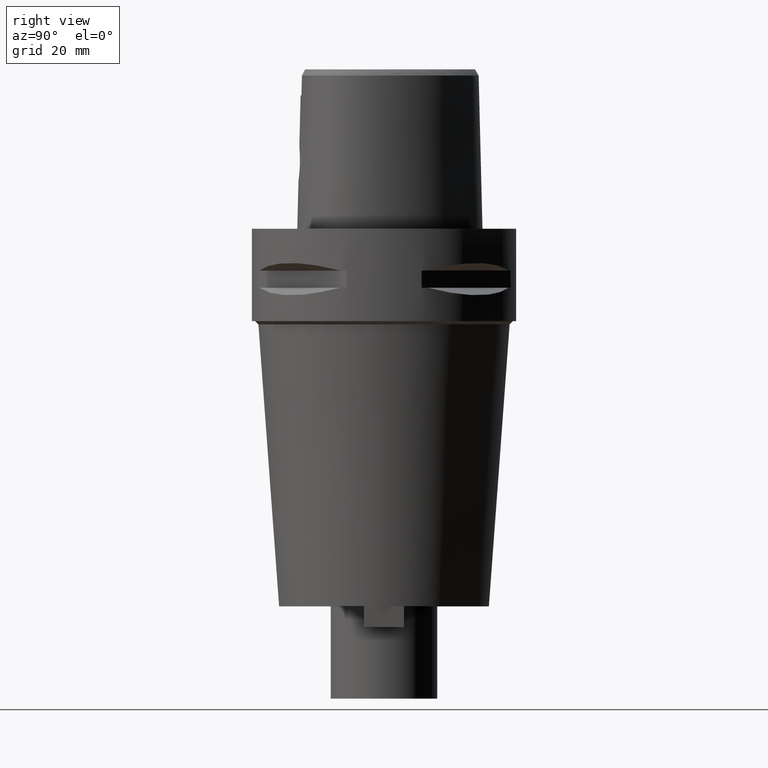
[diagram: clean part render]
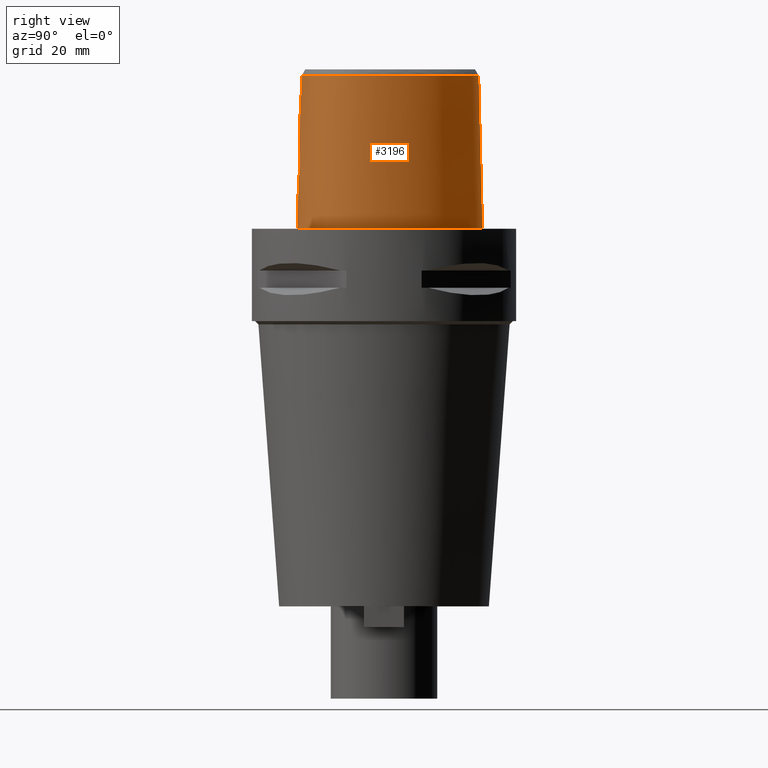
[diagram: same view with one face highlighted and labeled with its STEP entity id]
A machine part, right view. The second image highlights one B-rep face of the part: STEP entity #3196.
In plain terms, the highlighted face is a freeform B-spline surface patch.
Its self-contained STEP definition (entity closure, byte-faithful):
#134=CARTESIAN_POINT('',(3.637738219117E0,-1.956971420299E1,3.652185956444E1));
#144=CARTESIAN_POINT('',(-1.703764269641E-11,2.256201468012E1,
3.652186680744E1));
#145=CARTESIAN_POINT('',(3.980057723656E-1,2.256201468011E1,3.652186680744E1));
#146=CARTESIAN_POINT('',(1.191548421376E0,2.252064513026E1,3.652180197791E1));
#147=CARTESIAN_POINT('',(2.451661906656E0,2.232372524277E1,3.652187503247E1));
#148=CARTESIAN_POINT('',(3.775187116935E0,2.197589849649E1,3.652186396788E1));
#149=CARTESIAN_POINT('',(5.175952963295E0,2.145597390961E1,3.652187139812E1));
#150=CARTESIAN_POINT('',(6.656093951730E0,2.073737704975E1,3.652187209262E1));
#151=CARTESIAN_POINT('',(8.157673794115E0,1.982948040371E1,3.652186479224E1));
#152=CARTESIAN_POINT('',(9.648124662168E0,1.874754657410E1,3.652186778328E1));
#153=CARTESIAN_POINT('',(1.115199650919E1,1.746700551393E1,3.652186908166E1));
#154=CARTESIAN_POINT('',(1.275138858112E1,1.588002163828E1,3.652186696193E1));
#155=CARTESIAN_POINT('',(1.442310923169E1,1.392730878229E1,3.652186007520E1));
#156=CARTESIAN_POINT('',(1.600846281590E1,1.173489767122E1,3.652187219793E1));
#157=CARTESIAN_POINT('',(1.744456707320E1,9.371547943024E0,3.652185756304E1));
#158=CARTESIAN_POINT('',(1.867619725622E1,6.925367517476E0,3.652184617642E1));
#159=CARTESIAN_POINT('',(1.968307742429E1,4.444138892519E0,3.652187233318E1));
#160=CARTESIAN_POINT('',(2.040749768753E1,2.128365815369E0,3.652185913963E1));
#161=CARTESIAN_POINT('',(2.088035359277E1,6.095806362066E-2,3.652187685150E1));
#162=CARTESIAN_POINT('',(2.116230524487E1,-1.823640005701E0,3.652186159509E1));
#163=CARTESIAN_POINT('',(2.128624206953E1,-3.617007623876E0,3.652187065493E1));
#164=CARTESIAN_POINT('',(2.125409430008E1,-5.339715885353E0,3.652186580570E1));
#165=CARTESIAN_POINT('',(2.107383940393E1,-6.915921488467E0,3.652186985195E1));
#166=CARTESIAN_POINT('',(2.077386404720E1,-8.314957441477E0,3.652186872591E1));
#167=CARTESIAN_POINT('',(2.036797324371E1,-9.577456225465E0,3.652186723064E1));
#168=CARTESIAN_POINT('',(1.987193289361E1,-1.070810176480E1,3.652185942833E1));
#169=CARTESIAN_POINT('',(1.928133301964E1,-1.174506839769E1,3.652191249723E1));
#170=CARTESIAN_POINT('',(1.856493536007E1,-1.274304599746E1,3.652185915972E1));
#171=CARTESIAN_POINT('',(1.769367813097E1,-1.372638773052E1,3.652186987952E1));
#172=CARTESIAN_POINT('',(1.665192794144E1,-1.468839136346E1,3.652187224596E1));
#173=CARTESIAN_POINT('',(1.540208429159E1,-1.563463621559E1,3.652186536158E1));
#174=CARTESIAN_POINT('',(1.394812162219E1,-1.653098789028E1,3.652186914472E1));
#175=CARTESIAN_POINT('',(1.235002645250E1,-1.733120612622E1,3.652186613958E1));
#176=CARTESIAN_POINT('',(1.058928942667E1,-1.804127272966E1,3.652187528908E1));
#177=CARTESIAN_POINT('',(8.616659342959E0,-1.866801040537E1,3.652185401907E1));
#178=CARTESIAN_POINT('',(6.272667624447E0,-1.921532058974E1,3.652188138417E1));
#179=CARTESIAN_POINT('',(4.542082602987E0,-1.947335931443E1,3.652183633097E1));
#180=CARTESIAN_POINT('',(3.637738219117E0,-1.956971420299E1,3.652185956444E1));
#253=DIRECTION('',(-1.665636293796E-9,-2.499140646182E-2,-9.996876660253E-1));
#254=VECTOR('',#253,1.225382733632E1);
#255=CARTESIAN_POINT('',(2.041042029991E-8,-1.988004246002E1,3.180000004972E1));
#256=LINE('',#255,#254);
#274=CARTESIAN_POINT('',(-1.023561814322E-12,-2.038876923348E1,1.145E1));
#279=DIRECTION('',(-6.261628370898E-13,-2.499051295390E-2,-9.996876883619E-1));
#280=VECTOR('',#279,1.145357708542E1);
#281=CARTESIAN_POINT('',(-1.023561814322E-12,-2.038876923348E1,1.145E1));
#282=LINE('',#281,#280);
#302=CARTESIAN_POINT('',(-8.195366136956E-12,-2.0675E1,5.699144859742E-14));
#303=CARTESIAN_POINT('',(9.424410730313E-1,-2.0675E1,5.699144859742E-14));
#304=CARTESIAN_POINT('',(2.793498385144E0,-2.060121279113E1,
-2.644982334311E-14));
#305=CARTESIAN_POINT('',(5.508317392498E0,-2.027760784305E1,0.E0));
#306=CARTESIAN_POINT('',(8.042283048290E0,-1.976535038161E1,0.E0));
#307=CARTESIAN_POINT('',(1.034769246011E1,-1.909901168002E1,0.E0));
#308=CARTESIAN_POINT('',(1.239690028726E1,-1.831440633134E1,0.E0));
#309=CARTESIAN_POINT('',(1.418724497299E1,-1.744418331143E1,0.E0));
#310=CARTESIAN_POINT('',(1.573252799017E1,-1.651362362014E1,0.E0));
#311=CARTESIAN_POINT('',(1.705345026612E1,-1.554124778281E1,0.E0));
#312=CARTESIAN_POINT('',(1.817409574332E1,-1.453882758759E1,0.E0));
#313=CARTESIAN_POINT('',(1.911939204581E1,-1.350918186793E1,0.E0));
#314=CARTESIAN_POINT('',(1.990164630943E1,-1.246448486181E1,0.E0));
#315=CARTESIAN_POINT('',(2.055241369892E1,-1.138152228921E1,0.E0));
#316=CARTESIAN_POINT('',(2.109859169268E1,-1.021515076491E1,0.E0));
#317=CARTESIAN_POINT('',(2.155059010529E1,-8.927115672096E0,0.E0));
#318=CARTESIAN_POINT('',(2.189661581262E1,-7.503943940441E0,0.E0));
#319=CARTESIAN_POINT('',(2.212243449064E1,-5.927939707532E0,0.E0));
#320=CARTESIAN_POINT('',(2.220771296201E1,-4.182993250552E0,0.E0));
#321=CARTESIAN_POINT('',(2.212727169809E1,-2.257530056409E0,0.E0));
#322=CARTESIAN_POINT('',(2.185268526932E1,-1.488562286611E-1,0.E0));
#323=CARTESIAN_POINT('',(2.135583121463E1,2.131060266597E0,0.E0));
#324=CARTESIAN_POINT('',(2.061498960730E1,4.548922353838E0,0.E0));
#325=CARTESIAN_POINT('',(1.962183629035E1,7.048070491889E0,0.E0));
#326=CARTESIAN_POINT('',(1.838960266974E1,9.548018977044E0,0.E0));
#327=CARTESIAN_POINT('',(1.695186415591E1,1.196227064422E1,0.E0));
#328=CARTESIAN_POINT('',(1.535543809526E1,1.421580229752E1,0.E0));
#329=CARTESIAN_POINT('',(1.366191099290E1,1.624115744859E1,0.E0));
#330=CARTESIAN_POINT('',(1.193262208639E1,1.799662913011E1,0.E0));
#331=CARTESIAN_POINT('',(1.021592161028E1,1.947049924403E1,0.E0));
#332=CARTESIAN_POINT('',(8.546574879406E0,2.067109792507E1,0.E0));
#333=CARTESIAN_POINT('',(6.944082352105E0,2.162048497503E1,0.E0));
#334=CARTESIAN_POINT('',(5.416515327443E0,2.234578935846E1,0.E0));
#335=CARTESIAN_POINT('',(3.964005430014E0,2.287416795835E1,0.E0));
#336=CARTESIAN_POINT('',(2.581016174533E0,2.322975955653E1,0.E0));
#337=CARTESIAN_POINT('',(1.261697128686E0,2.343214818692E1,
-2.511015696599E-14));
#338=CARTESIAN_POINT('',(4.146040462738E-1,2.347499999999E1,
5.410486873340E-14));
#339=CARTESIAN_POINT('',(4.711982846279E-11,2.347499999999E1,
5.410486873340E-14));
#344=CARTESIAN_POINT('',(4.711982846279E-11,2.347499999999E1,
5.410486873340E-14));
#381=CARTESIAN_POINT('',(-8.195366136956E-12,-2.0675E1,5.699144859742E-14));
#1042=CARTESIAN_POINT('',(-1.023561814322E-12,-2.038876923348E1,1.145E1));
#1043=CARTESIAN_POINT('',(3.518410039386E-1,-2.038876923348E1,1.145E1));
#1044=CARTESIAN_POINT('',(1.056002269219E0,-2.037568214282E1,1.154238708990E1));
#1045=CARTESIAN_POINT('',(2.040385422200E0,-2.032131306427E1,1.194792367503E1));
#1046=CARTESIAN_POINT('',(2.891794145478E0,-2.024379318177E1,1.259807706062E1));
#1047=CARTESIAN_POINT('',(3.545775398699E0,-2.016065841224E1,1.344776599254E1));
#1048=CARTESIAN_POINT('',(3.957111572053E0,-2.009016928170E1,1.443938952574E1));
#1049=CARTESIAN_POINT('',(4.096327614963E0,-2.004685475213E1,1.549997055253E1));
#1050=CARTESIAN_POINT('',(3.957577704512E0,-2.003680793094E1,1.655714913641E1));
#1051=CARTESIAN_POINT('',(3.549577819492E0,-2.005726835327E1,1.754497021867E1));
#1052=CARTESIAN_POINT('',(2.899403737141E0,-2.009772754991E1,1.839411373098E1));
#1053=CARTESIAN_POINT('',(2.049555943288E0,-2.014302748467E1,1.904720420744E1));
#1054=CARTESIAN_POINT('',(1.060000729701E0,-2.017769463663E1,1.945708074101E1));
#1055=CARTESIAN_POINT('',(3.531896813643E-1,-2.018628283969E1,1.955E1));
#1056=CARTESIAN_POINT('',(0.E0,-2.018628283969E1,1.955E1));
#1061=CARTESIAN_POINT('',(3.736696120838E0,-1.967778323292E1,3.180000004973E1));
#1062=CARTESIAN_POINT('',(3.726005752326E0,-1.966575923680E1,3.232454431401E1));
#1063=CARTESIAN_POINT('',(3.704089546608E0,-1.964135163374E1,3.337368958252E1));
#1064=CARTESIAN_POINT('',(3.671106187705E0,-1.960533295284E1,3.494764256979E1));
#1065=CARTESIAN_POINT('',(3.649042743234E0,-1.958170238761E1,3.599710209057E1));
#1066=CARTESIAN_POINT('',(3.637738219117E0,-1.956971420299E1,3.652185956444E1));
#1071=DIRECTION('',(1.756137887817E-12,2.499051290963E-2,-9.996876883630E-1));
#1072=VECTOR('',#1071,3.653327657485E1);
#1073=CARTESIAN_POINT('',(-1.703764269641E-11,2.256201468012E1,
3.652186680744E1));
#1074=LINE('',#1073,#1072);
#1078=CARTESIAN_POINT('',(3.736696120838E0,-1.967778323292E1,3.180000004973E1));
#1079=CARTESIAN_POINT('',(3.322953877844E0,-1.972294683117E1,3.180000004973E1));
#1080=CARTESIAN_POINT('',(2.494485023251E0,-1.979770229043E1,3.179999998342E1));
#1081=CARTESIAN_POINT('',(1.247889117313E0,-1.986528006854E1,3.179999998343E1));
#1082=CARTESIAN_POINT('',(4.161790006858E-1,-1.988004246001E1,
3.180000004972E1));
#1083=CARTESIAN_POINT('',(2.041042029991E-8,-1.988004246002E1,
3.180000004972E1));
#1088=CARTESIAN_POINT('',(2.041042029991E-8,-1.988004246002E1,
3.180000004972E1));
#1673=VERTEX_POINT('',#134);
#1674=VERTEX_POINT('',#1061);
#1680=CARTESIAN_POINT('',(-1.703764269641E-11,2.256201468012E1,
3.652186680744E1));
#1681=VERTEX_POINT('',#1680);
#1682=VERTEX_POINT('',#344);
#1683=VERTEX_POINT('',#381);
#1684=VERTEX_POINT('',#1088);
#1685=CARTESIAN_POINT('',(0.E0,-2.018628283969E1,1.955E1));
#1686=VERTEX_POINT('',#1685);
#1687=VERTEX_POINT('',#274);
#3084=CARTESIAN_POINT('',(-6.840631437256E-1,-2.068668116930E1,
-7.304378952584E-1));
#3085=CARTESIAN_POINT('',(-6.779734120747E-1,-2.037023475394E1,
1.193048562255E1));
#3086=CARTESIAN_POINT('',(-6.718836804239E-1,-2.005378833858E1,
2.459140914037E1));
#3087=CARTESIAN_POINT('',(-6.657939487730E-1,-1.973734192323E1,
3.725233265818E1));
#3088=CARTESIAN_POINT('',(-4.561077450386E-1,-2.069106756159E1,
-7.304378952584E-1));
#3089=CARTESIAN_POINT('',(-4.520500659788E-1,-2.037458439078E1,
1.193048562255E1));
#3090=CARTESIAN_POINT('',(-4.479923869190E-1,-2.005810121996E1,
2.459140914037E1));
#3091=CARTESIAN_POINT('',(-4.439347078591E-1,-1.974161804915E1,
3.725233265818E1));
#3092=CARTESIAN_POINT('',(1.886855603558E0,-2.071358920079E1,
-7.304378952584E-1));
#3093=CARTESIAN_POINT('',(1.870063857648E0,-2.039691442941E1,1.193048562255E1));
#3094=CARTESIAN_POINT('',(1.853272111738E0,-2.008023965802E1,2.459140914037E1));
#3095=CARTESIAN_POINT('',(1.836480365829E0,-1.976356488664E1,3.725233265818E1));
#3096=CARTESIAN_POINT('',(6.344715577655E0,-2.031619965501E1,
-7.304378952584E-1));
#3097=CARTESIAN_POINT('',(6.288476564642E0,-2.000290563497E1,1.193048562255E1));
#3098=CARTESIAN_POINT('',(6.232237551630E0,-1.968961161494E1,2.459140914037E1));
#3099=CARTESIAN_POINT('',(6.175998538617E0,-1.937631759490E1,3.725233265818E1));
#3100=CARTESIAN_POINT('',(1.123887130438E1,-1.891049776524E1,
-7.304378952584E-1));
#3101=CARTESIAN_POINT('',(1.113012652792E1,-1.861140108442E1,1.193048562255E1));
#3102=CARTESIAN_POINT('',(1.102138175146E1,-1.831230440360E1,2.459140914037E1));
#3103=CARTESIAN_POINT('',(1.091263697500E1,-1.801320772278E1,3.725233265818E1));
#3104=CARTESIAN_POINT('',(1.468244497387E1,-1.723001773499E1,
-7.304378952584E-1));
#3105=CARTESIAN_POINT('',(1.452531259286E1,-1.695413741174E1,1.193048562255E1));
#3106=CARTESIAN_POINT('',(1.436818021185E1,-1.667825708849E1,2.459140914037E1));
#3107=CARTESIAN_POINT('',(1.421104783084E1,-1.640237676524E1,3.725233265818E1));
#3108=CARTESIAN_POINT('',(1.697022731445E1,-1.569280483540E1,
-7.304378952584E-1));
#3109=CARTESIAN_POINT('',(1.677374378027E1,-1.544292466757E1,1.193048562255E1));
#3110=CARTESIAN_POINT('',(1.657726024609E1,-1.519304449973E1,2.459140914037E1));
#3111=CARTESIAN_POINT('',(1.638077671192E1,-1.494316433189E1,3.725233265818E1));
#3112=CARTESIAN_POINT('',(1.858171406980E1,-1.418198046922E1,
-7.304378952584E-1));
#3113=CARTESIAN_POINT('',(1.835112148455E1,-1.396357030471E1,1.193048562255E1));
#3114=CARTESIAN_POINT('',(1.812052889930E1,-1.374516014020E1,2.459140914037E1));
#3115=CARTESIAN_POINT('',(1.788993631404E1,-1.352674997570E1,3.725233265818E1));
#3116=CARTESIAN_POINT('',(1.966427015063E1,-1.283600704991E1,
-7.304378952584E-1));
#3117=CARTESIAN_POINT('',(1.940779762268E1,-1.264961922650E1,1.193048562255E1));
#3118=CARTESIAN_POINT('',(1.915132509474E1,-1.246323140308E1,2.459140914037E1));
#3119=CARTESIAN_POINT('',(1.889485256679E1,-1.227684357967E1,3.725233265818E1));
#3120=CARTESIAN_POINT('',(2.036546124981E1,-1.175800453478E1,
-7.304378952584E-1));
#3121=CARTESIAN_POINT('',(2.009084466968E1,-1.159945457772E1,1.193048562255E1));
#3122=CARTESIAN_POINT('',(1.981622808954E1,-1.144090462065E1,2.459140914037E1));
#3123=CARTESIAN_POINT('',(1.954161150941E1,-1.128235466359E1,3.725233265818E1));
#3124=CARTESIAN_POINT('',(2.094844326360E1,-1.061175397218E1,
-7.304378952584E-1));
#3125=CARTESIAN_POINT('',(2.065879041128E1,-1.048283616269E1,1.193048562255E1));
#3126=CARTESIAN_POINT('',(2.036913755897E1,-1.035391835320E1,2.459140914037E1));
#3127=CARTESIAN_POINT('',(2.007948470665E1,-1.022500054372E1,3.725233265818E1));
#3128=CARTESIAN_POINT('',(2.157281239782E1,-9.001246196728E0,
-7.304378952584E-1));
#3129=CARTESIAN_POINT('',(2.126836734401E1,-8.910752224278E0,1.193048562255E1));
#3130=CARTESIAN_POINT('',(2.096392229021E1,-8.820258251828E0,2.459140914037E1));
#3131=CARTESIAN_POINT('',(2.065947723640E1,-8.729764279378E0,3.725233265818E1));
#3132=CARTESIAN_POINT('',(2.207548129647E1,-6.850245536255E0,
-7.304378952584E-1));
#3133=CARTESIAN_POINT('',(2.176083704009E1,-6.805026032826E0,1.193048562255E1));
#3134=CARTESIAN_POINT('',(2.144619278370E1,-6.759806529397E0,2.459140914037E1));
#3135=CARTESIAN_POINT('',(2.113154852732E1,-6.714587025968E0,3.725233265818E1));
#3136=CARTESIAN_POINT('',(2.226285557079E1,-4.100361500017E0,
-7.304378952584E-1));
#3137=CARTESIAN_POINT('',(2.194536970524E1,-4.102220499719E0,1.193048562255E1));
#3138=CARTESIAN_POINT('',(2.162788383969E1,-4.104079499420E0,2.459140914037E1));
#3139=CARTESIAN_POINT('',(2.131039797414E1,-4.105938499122E0,3.725233265818E1));
#3140=CARTESIAN_POINT('',(2.199640702129E1,-2.778990152829E-1,
-7.304378952584E-1));
#3141=CARTESIAN_POINT('',(2.168301093533E1,-3.332744170456E-1,
1.193048562255E1));
#3142=CARTESIAN_POINT('',(2.136961484938E1,-3.886498188083E-1,
2.459140914037E1));
#3143=CARTESIAN_POINT('',(2.105621876342E1,-4.440252205710E-1,
3.725233265818E1));
#3144=CARTESIAN_POINT('',(2.076670355424E1,4.663413655833E0,
-7.304378952584E-1));
#3145=CARTESIAN_POINT('',(2.046725036658E1,4.555493621393E0,1.193048562255E1));
#3146=CARTESIAN_POINT('',(2.016779717891E1,4.447573586954E0,2.459140914037E1));
#3147=CARTESIAN_POINT('',(1.986834399125E1,4.339653552515E0,3.725233265818E1));
#3148=CARTESIAN_POINT('',(1.808416038787E1,1.044089487485E1,
-7.304378952584E-1));
#3149=CARTESIAN_POINT('',(1.780867300945E1,1.028184204427E1,1.193048562255E1));
#3150=CARTESIAN_POINT('',(1.753318563103E1,1.012278921369E1,2.459140914037E1));
#3151=CARTESIAN_POINT('',(1.725769825261E1,9.963736383108E0,3.725233265818E1));
#3152=CARTESIAN_POINT('',(1.442198652416E1,1.565278600603E1,
-7.304378952584E-1));
#3153=CARTESIAN_POINT('',(1.417879752472E1,1.544741190162E1,1.193048562255E1));
#3154=CARTESIAN_POINT('',(1.393560852528E1,1.524203779722E1,2.459140914037E1));
#3155=CARTESIAN_POINT('',(1.369241952584E1,1.503666369281E1,3.725233265818E1));
#3156=CARTESIAN_POINT('',(1.075753574164E1,1.918839676167E1,
-7.304378952584E-1));
#3157=CARTESIAN_POINT('',(1.055288400347E1,1.894467580935E1,1.193048562255E1));
#3158=CARTESIAN_POINT('',(1.034823226531E1,1.870095485703E1,2.459140914037E1));
#3159=CARTESIAN_POINT('',(1.014358052715E1,1.845723390472E1,3.725233265818E1));
#3160=CARTESIAN_POINT('',(7.580410842888E0,2.133037926757E1,
-7.304378952584E-1));
#3161=CARTESIAN_POINT('',(7.420053094915E0,2.105635737966E1,1.193048562255E1));
#3162=CARTESIAN_POINT('',(7.259695346941E0,2.078233549174E1,2.459140914037E1));
#3163=CARTESIAN_POINT('',(7.099337598968E0,2.050831360383E1,3.725233265818E1));
#3164=CARTESIAN_POINT('',(5.105252918117E0,2.254305024742E1,
-7.304378952584E-1));
#3165=CARTESIAN_POINT('',(4.987110637009E0,2.224795272965E1,1.193048562255E1));
#3166=CARTESIAN_POINT('',(4.868968355900E0,2.195285521187E1,2.459140914037E1));
#3167=CARTESIAN_POINT('',(4.750826074792E0,2.165775769410E1,3.725233265818E1));
#3168=CARTESIAN_POINT('',(2.568271206886E0,2.331126238921E1,
-7.304378952584E-1));
#3169=CARTESIAN_POINT('',(2.503210888097E0,2.299958930949E1,1.193048562255E1));
#3170=CARTESIAN_POINT('',(2.438150569308E0,2.268791622977E1,2.459140914037E1));
#3171=CARTESIAN_POINT('',(2.373090250518E0,2.237624315005E1,3.725233265818E1));
#3172=CARTESIAN_POINT('',(6.155340743206E-1,2.351883498295E1,
-7.304378952584E-1));
#3173=CARTESIAN_POINT('',(5.990981970547E-1,2.320165460145E1,1.193048562255E1));
#3174=CARTESIAN_POINT('',(5.826623197888E-1,2.288447421996E1,2.459140914037E1));
#3175=CARTESIAN_POINT('',(5.662264425229E-1,2.256729383847E1,3.725233265818E1));
#3176=CARTESIAN_POINT('',(-4.812391256269E-1,2.348607176826E1,
-7.304378952584E-1));
#3177=CARTESIAN_POINT('',(-4.685451932328E-1,2.316976065812E1,
1.193048562255E1));
#3178=CARTESIAN_POINT('',(-4.558512608386E-1,2.285344954799E1,
2.459140914037E1));
#3179=CARTESIAN_POINT('',(-4.431573284444E-1,2.253713843786E1,
3.725233265818E1));
#3180=CARTESIAN_POINT('',(-7.217521650971E-1,2.347150799234E1,
-7.304378952584E-1));
#3181=CARTESIAN_POINT('',(-7.025952810340E-1,2.315559737177E1,
1.193048562255E1));
#3182=CARTESIAN_POINT('',(-6.834383969710E-1,2.283968675119E1,
2.459140914037E1));
#3183=CARTESIAN_POINT('',(-6.642815129080E-1,2.252377613062E1,
3.725233265818E1));
#3184=B_SPLINE_SURFACE_WITH_KNOTS('',3,3,((#3084,#3085,#3086,#3087),(#3088,
#3089,#3090,#3091),(#3092,#3093,#3094,#3095),(#3096,#3097,#3098,#3099),(#3100,
#3101,#3102,#3103),(#3104,#3105,#3106,#3107),(#3108,#3109,#3110,#3111),(#3112,
#3113,#3114,#3115),(#3116,#3117,#3118,#3119),(#3120,#3121,#3122,#3123),(#3124,
#3125,#3126,#3127),(#3128,#3129,#3130,#3131),(#3132,#3133,#3134,#3135),(#3136,
#3137,#3138,#3139),(#3140,#3141,#3142,#3143),(#3144,#3145,#3146,#3147),(#3148,
#3149,#3150,#3151),(#3152,#3153,#3154,#3155),(#3156,#3157,#3158,#3159),(#3160,
#3161,#3162,#3163),(#3164,#3165,#3166,#3167),(#3168,#3169,#3170,#3171),(#3172,
#3173,#3174,#3175),(#3176,#3177,#3178,#3179),(#3180,#3181,#3182,#3183)),
.UNSPECIFIED.,.F.,.F.,.F.,(4,1,1,1,1,1,1,1,1,1,1,1,1,1,1,1,1,1,1,1,1,1,4),(4,4),
(-8.985960173573E-3,0.E0,8.333333333340E-2,1.666666666667E-1,2.083333333333E-1,
2.5E-1,2.916666666667E-1,3.125E-1,3.333333333333E-1,3.541666666666E-1,
3.749999999999E-1,4.166666666666E-1,4.583333333332E-1,4.999999999999E-1,
5.833333333331E-1,6.666666666665E-1,7.499999999998E-1,8.333333333330E-1,
8.749999999997E-1,9.166666666664E-1,9.583333333330E-1,1.E0,1.011710456763E0),(
-4.474835561125E-9,1.000000228217E0),.UNSPECIFIED.);
#3185=ORIENTED_EDGE('',*,*,#2553,.F.);
#3186=ORIENTED_EDGE('',*,*,#2537,.F.);
#3187=ORIENTED_EDGE('',*,*,#3076,.T.);
#3188=ORIENTED_EDGE('',*,*,#2533,.F.);
#3190=ORIENTED_EDGE('',*,*,#3189,.F.);
#3191=ORIENTED_EDGE('',*,*,#1896,.T.);
#3192=ORIENTED_EDGE('',*,*,#2162,.F.);
#3193=ORIENTED_EDGE('',*,*,#2527,.T.);
#3194=EDGE_LOOP('',(#3185,#3186,#3187,#3188,#3190,#3191,#3192,#3193));
#3195=FACE_OUTER_BOUND('',#3194,.F.);
#181=B_SPLINE_CURVE_WITH_KNOTS('',3,(#144,#145,#146,#147,#148,#149,#150,#151,
#152,#153,#154,#155,#156,#157,#158,#159,#160,#161,#162,#163,#164,#165,#166,#167,
#168,#169,#170,#171,#172,#173,#174,#175,#176,#177,#178,#179,#180),.UNSPECIFIED.,
.F.,.F.,(4,1,1,1,1,1,1,1,1,1,1,1,1,1,1,1,1,1,1,1,1,1,1,1,1,1,1,1,1,1,1,1,1,1,4),
(0.E0,2.941176470588E-2,5.882352941176E-2,8.823529411765E-2,1.176470588235E-1,
1.470588235294E-1,1.764705882353E-1,2.058823529412E-1,2.352941176471E-1,
2.647058823529E-1,2.941176470588E-1,3.235294117647E-1,3.529411764706E-1,
3.823529411765E-1,4.117647058824E-1,4.411764705882E-1,4.705882352941E-1,5.E-1,
5.294117647059E-1,5.588235294118E-1,5.882352941176E-1,6.176470588235E-1,
6.470588235294E-1,6.764705882353E-1,7.058823529412E-1,7.352941176471E-1,
7.647058823529E-1,7.941176470588E-1,8.235294117647E-1,8.529411764706E-1,
8.823529411765E-1,9.117647058824E-1,9.411764705882E-1,9.705882352941E-1,1.E0),
.UNSPECIFIED.);
#340=B_SPLINE_CURVE_WITH_KNOTS('',3,(#302,#303,#304,#305,#306,#307,#308,#309,
#310,#311,#312,#313,#314,#315,#316,#317,#318,#319,#320,#321,#322,#323,#324,#325,
#326,#327,#328,#329,#330,#331,#332,#333,#334,#335,#336,#337,#338,#339),
.UNSPECIFIED.,.F.,.F.,(4,1,1,1,1,1,1,1,1,1,1,1,1,1,1,1,1,1,1,1,1,1,1,1,1,1,1,1,
1,1,1,1,1,1,1,4),(0.E0,2.857142857143E-2,5.714285714286E-2,8.571428571429E-2,
1.142857142857E-1,1.428571428571E-1,1.714285714286E-1,2.E-1,2.285714285714E-1,
2.571428571429E-1,2.857142857143E-1,3.142857142857E-1,3.428571428571E-1,
3.714285714286E-1,4.E-1,4.285714285714E-1,4.571428571429E-1,4.857142857143E-1,
5.142857142857E-1,5.428571428571E-1,5.714285714286E-1,6.E-1,6.285714285714E-1,
6.571428571429E-1,6.857142857143E-1,7.142857142857E-1,7.428571428571E-1,
7.714285714286E-1,8.E-1,8.285714285714E-1,8.571428571429E-1,8.857142857143E-1,
9.142857142857E-1,9.428571428571E-1,9.714285714286E-1,1.E0),.UNSPECIFIED.);
#1057=B_SPLINE_CURVE_WITH_KNOTS('',3,(#1042,#1043,#1044,#1045,#1046,#1047,#1048,
#1049,#1050,#1051,#1052,#1053,#1054,#1055,#1056),.UNSPECIFIED.,.F.,.F.,(4,1,1,1,
1,1,1,1,1,1,1,1,4),(0.E0,8.333333333333E-2,1.666666666667E-1,2.5E-1,
3.333333333333E-1,4.166666666667E-1,5.E-1,5.833333333333E-1,6.666666666667E-1,
7.5E-1,8.333333333333E-1,9.166666666667E-1,1.E0),.UNSPECIFIED.);
#1067=B_SPLINE_CURVE_WITH_KNOTS('',3,(#1061,#1062,#1063,#1064,#1065,#1066),
.UNSPECIFIED.,.F.,.F.,(4,1,1,4),(0.E0,3.333333333333E-1,6.666666666667E-1,1.E0),
.UNSPECIFIED.);
#1084=B_SPLINE_CURVE_WITH_KNOTS('',3,(#1078,#1079,#1080,#1081,#1082,#1083),
.UNSPECIFIED.,.F.,.F.,(4,1,1,4),(0.E0,3.333333333333E-1,6.666666666667E-1,1.E0),
.UNSPECIFIED.);
#1896=EDGE_CURVE('',#1674,#1673,#1067,.T.);
#2162=EDGE_CURVE('',#1681,#1673,#181,.T.);
#2527=EDGE_CURVE('',#1681,#1682,#1074,.T.);
#2533=EDGE_CURVE('',#1684,#1686,#256,.T.);
#2537=EDGE_CURVE('',#1687,#1683,#282,.T.);
#2553=EDGE_CURVE('',#1683,#1682,#340,.T.);
#3076=EDGE_CURVE('',#1687,#1686,#1057,.T.);
#3189=EDGE_CURVE('',#1674,#1684,#1084,.T.);
#3196=ADVANCED_FACE('',(#3195),#3184,.T.);